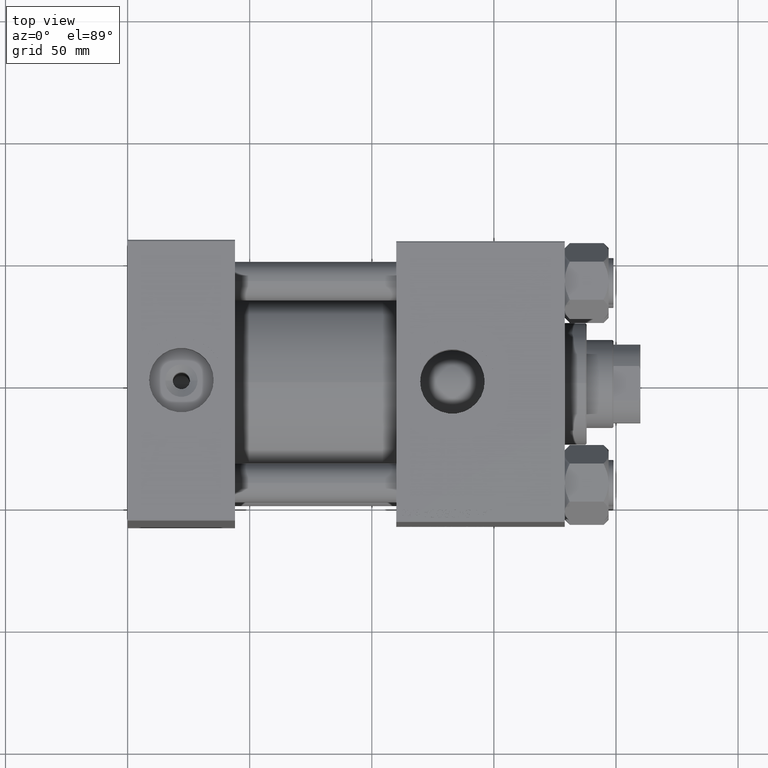
[diagram: clean part render]
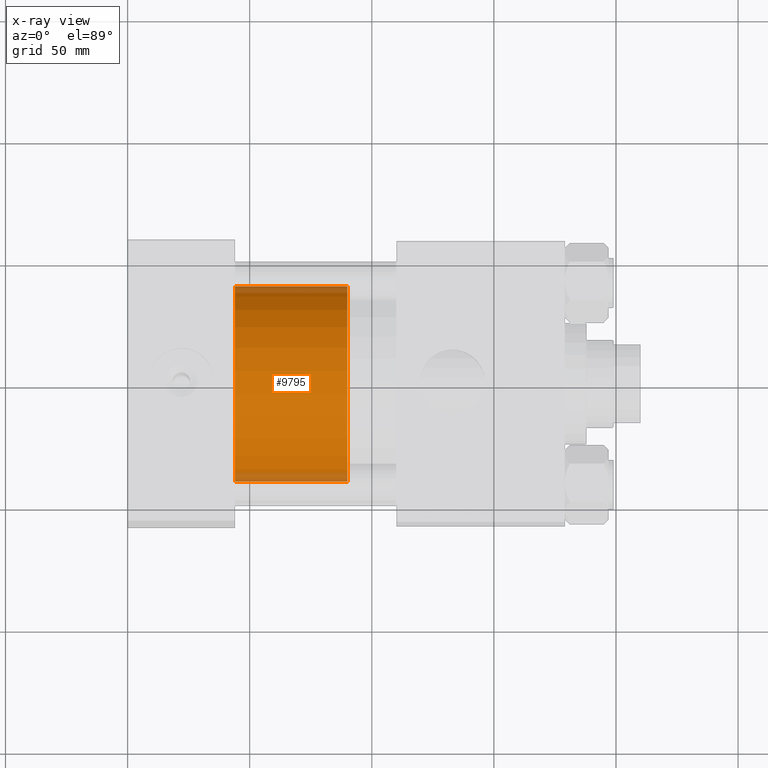
[diagram: x-ray — body ghosted, one internal face saturated and labeled with its STEP entity id]
A machine part, top view, then the same camera in x-ray: the body is ghosted and one INTERNAL B-rep face — a face not visible from any outside direction — is saturated and labeled: STEP entity #9795.
In plain terms, the highlighted cylindrical surface (partial cylindrical patch) has radius 40 mm, axis along (-1, 0, 0).
Its self-contained STEP definition (entity closure, byte-faithful):
#298 = DIRECTION ( 'NONE',  ( -0.000000000000000000, -0.000000000000000000, -1.000000000000000000 ) ) ;
#458 = AXIS2_PLACEMENT_3D ( 'NONE', #48904, #33114, #5554 ) ;
#913 = DIRECTION ( 'NONE',  ( -0.000000000000000000, -0.000000000000000000, -1.000000000000000000 ) ) ;
#2950 = ORIENTED_EDGE ( 'NONE', *, *, #34615, .F. ) ;
#5554 = DIRECTION ( 'NONE',  ( 1.000000000000000000, 0.000000000000000000, 0.000000000000000000 ) ) ;
#7341 = EDGE_CURVE ( 'NONE', #26992, #18994, #10928, .T. ) ;
#7688 = AXIS2_PLACEMENT_3D ( 'NONE', #26997, #19577, #46388 ) ;
#9446 = EDGE_CURVE ( 'NONE', #12849, #18994, #43276, .T. ) ;
#9795 = ADVANCED_FACE ( 'NONE', ( #41213 ), #34567, .T. ) ;
#10928 = CIRCLE ( 'NONE', #7688, 40.00000000000000000 ) ;
#11279 = CARTESIAN_POINT ( 'NONE',  ( -40.00000000000000000, 0.000000000000000000, 46.00000000000000000 ) ) ;
#12849 = VERTEX_POINT ( 'NONE', #33628 ) ;
#13867 = VECTOR ( 'NONE', #298, 1000.000000000000000 ) ;
#18723 = DIRECTION ( 'NONE',  ( -0.000000000000000000, -0.000000000000000000, -1.000000000000000000 ) ) ;
#18976 = CARTESIAN_POINT ( 'NONE',  ( 0.000000000000000000, 0.000000000000000000, 46.00000000000000000 ) ) ;
#18994 = VERTEX_POINT ( 'NONE', #32236 ) ;
#19577 = DIRECTION ( 'NONE',  ( 0.000000000000000000, 0.000000000000000000, 1.000000000000000000 ) ) ;
#20896 = EDGE_CURVE ( 'NONE', #24973, #26992, #46254, .T. ) ;
#24973 = VERTEX_POINT ( 'NONE', #35126 ) ;
#25578 = ORIENTED_EDGE ( 'NONE', *, *, #20896, .T. ) ;
#26708 = CARTESIAN_POINT ( 'NONE',  ( -40.00000000000000000, 0.000000000000000000, 0.000000000000000000 ) ) ;
#26992 = VERTEX_POINT ( 'NONE', #26708 ) ;
#26997 = CARTESIAN_POINT ( 'NONE',  ( 0.000000000000000000, 0.000000000000000000, 0.000000000000000000 ) ) ;
#32236 = CARTESIAN_POINT ( 'NONE',  ( 40.00000000000000000, 4.898587196589413026E-15, 0.000000000000000000 ) ) ;
#33114 = DIRECTION ( 'NONE',  ( 0.000000000000000000, 0.000000000000000000, 1.000000000000000000 ) ) ;
#33628 = CARTESIAN_POINT ( 'NONE',  ( 40.00000000000000000, 4.898587196589413026E-15, 46.00000000000000000 ) ) ;
#34567 = CYLINDRICAL_SURFACE ( 'NONE', #44484, 40.00000000000000000 ) ;
#34615 = EDGE_CURVE ( 'NONE', #24973, #12849, #46113, .T. ) ;
#34673 = VECTOR ( 'NONE', #913, 1000.000000000000000 ) ;
#35126 = CARTESIAN_POINT ( 'NONE',  ( -40.00000000000000000, 0.000000000000000000, 46.00000000000000000 ) ) ;
#35369 = CARTESIAN_POINT ( 'NONE',  ( 40.00000000000000000, 4.898587196589413026E-15, 46.00000000000000000 ) ) ;
#37275 = EDGE_LOOP ( 'NONE', ( #37324, #2950, #25578, #48214 ) ) ;
#37324 = ORIENTED_EDGE ( 'NONE', *, *, #9446, .F. ) ;
#41213 = FACE_OUTER_BOUND ( 'NONE', #37275, .T. ) ;
#41726 = DIRECTION ( 'NONE',  ( -1.000000000000000000, 0.000000000000000000, 0.000000000000000000 ) ) ;
#43276 = LINE ( 'NONE', #35369, #34673 ) ;
#44484 = AXIS2_PLACEMENT_3D ( 'NONE', #18976, #18723, #41726 ) ;
#46113 = CIRCLE ( 'NONE', #458, 40.00000000000000000 ) ;
#46254 = LINE ( 'NONE', #11279, #13867 ) ;
#46388 = DIRECTION ( 'NONE',  ( 1.000000000000000000, 0.000000000000000000, 0.000000000000000000 ) ) ;
#48214 = ORIENTED_EDGE ( 'NONE', *, *, #7341, .T. ) ;
#48904 = CARTESIAN_POINT ( 'NONE',  ( 0.000000000000000000, 0.000000000000000000, 46.00000000000000000 ) ) ;